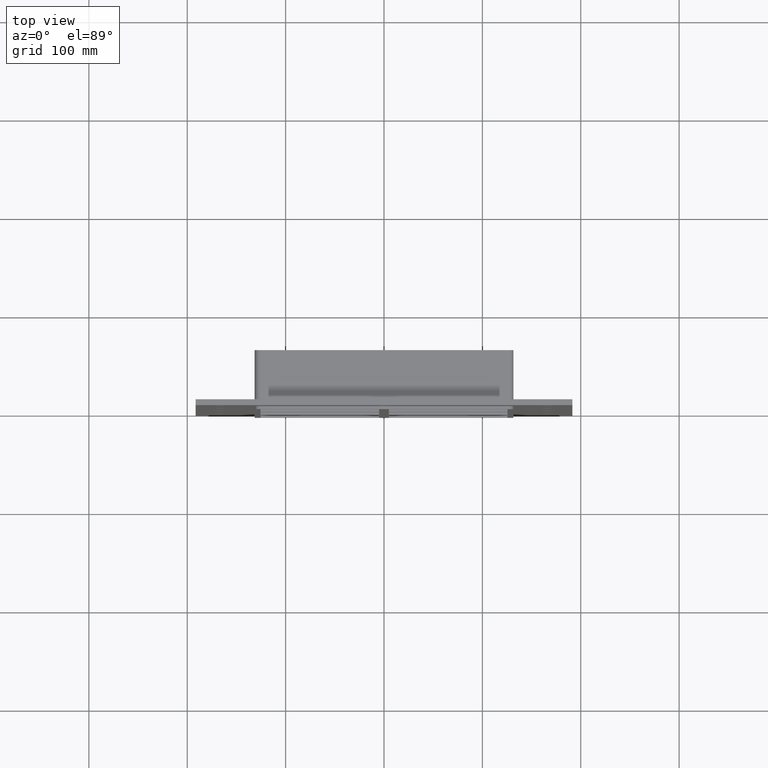
[diagram: clean part render]
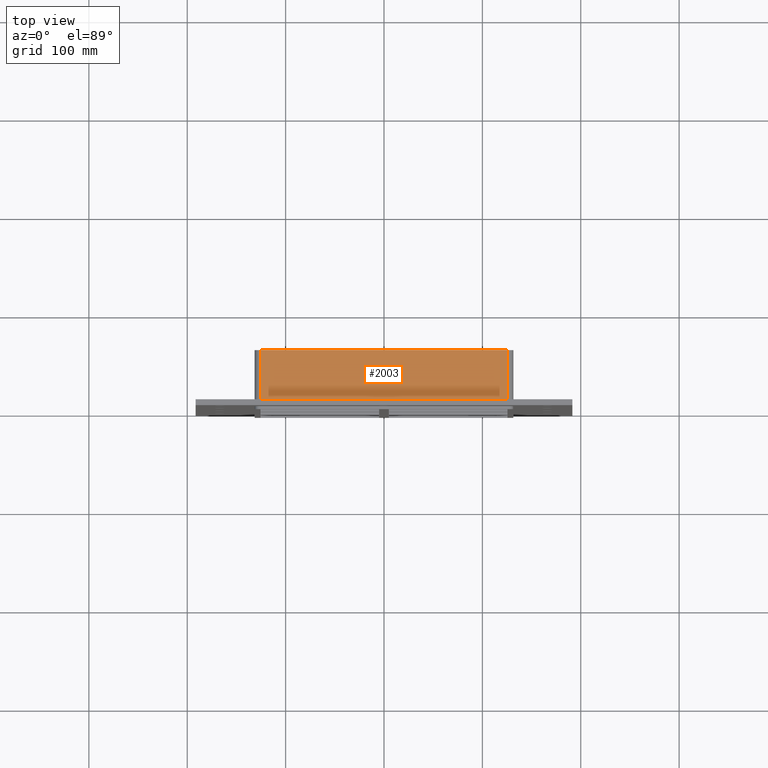
[diagram: same view with one face highlighted and labeled with its STEP entity id]
A machine part, top view. The second image highlights one B-rep face of the part: STEP entity #2003.
In plain terms, the highlighted planar face has unit normal (0, 0, 1).
Its self-contained STEP definition (entity closure, byte-faithful):
#986=CARTESIAN_POINT('',(-125.49999999999997,57.0,257.25));
#987=VERTEX_POINT('',#986);
#995=CARTESIAN_POINT('',(125.49999999999997,57.0,257.25));
#996=VERTEX_POINT('',#995);
#997=CARTESIAN_POINT('',(-125.49999999999999,57.0,257.25));
#998=DIRECTION('',(1.0,0.0,0.0));
#999=VECTOR('',#998,250.99999999999994);
#1000=LINE('',#997,#999);
#1001=EDGE_CURVE('',#987,#996,#1000,.T.);
#1354=CARTESIAN_POINT('',(125.49999999999997,6.000000000000001,257.25));
#1355=VERTEX_POINT('',#1354);
#1363=CARTESIAN_POINT('',(-125.49999999999997,6.000000000000001,257.25));
#1364=VERTEX_POINT('',#1363);
#1365=CARTESIAN_POINT('',(-125.49999999999997,6.000000000000001,257.25));
#1366=DIRECTION('',(1.0,0.0,0.0));
#1367=VECTOR('',#1366,250.99999999999994);
#1368=LINE('',#1365,#1367);
#1369=EDGE_CURVE('',#1364,#1355,#1368,.T.);
#1665=CARTESIAN_POINT('',(125.49999999999997,57.0,257.25));
#1666=DIRECTION('',(0.0,-1.0,0.0));
#1667=VECTOR('',#1666,51.0);
#1668=LINE('',#1665,#1667);
#1669=EDGE_CURVE('',#996,#1355,#1668,.T.);
#1981=CARTESIAN_POINT('',(-125.49999999999997,6.000000000000001,257.25));
#1982=DIRECTION('',(0.0,1.0,0.0));
#1983=VECTOR('',#1982,51.0);
#1984=LINE('',#1981,#1983);
#1985=EDGE_CURVE('',#1364,#987,#1984,.T.);
#1992=CARTESIAN_POINT('',(-131.5,0.0,257.25));
#1993=DIRECTION('',(0.0,0.0,1.0));
#1994=DIRECTION('',(1.0,0.0,0.0));
#1995=AXIS2_PLACEMENT_3D('',#1992,#1993,#1994);
#1996=PLANE('',#1995);
#1997=ORIENTED_EDGE('',*,*,#1369,.T.);
#1998=ORIENTED_EDGE('',*,*,#1669,.F.);
#1999=ORIENTED_EDGE('',*,*,#1001,.F.);
#2000=ORIENTED_EDGE('',*,*,#1985,.F.);
#2001=EDGE_LOOP('',(#1997,#1998,#1999,#2000));
#2002=FACE_OUTER_BOUND('',#2001,.T.);
#2003=ADVANCED_FACE('',(#2002),#1996,.T.);